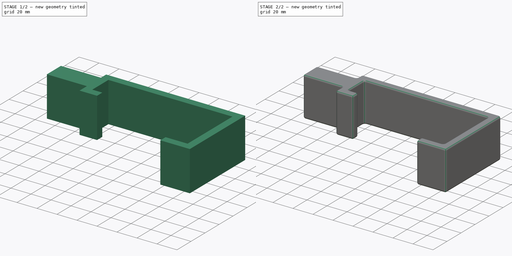
[diagram: build sequence overview — one tinted view per stage of 2, left to right]
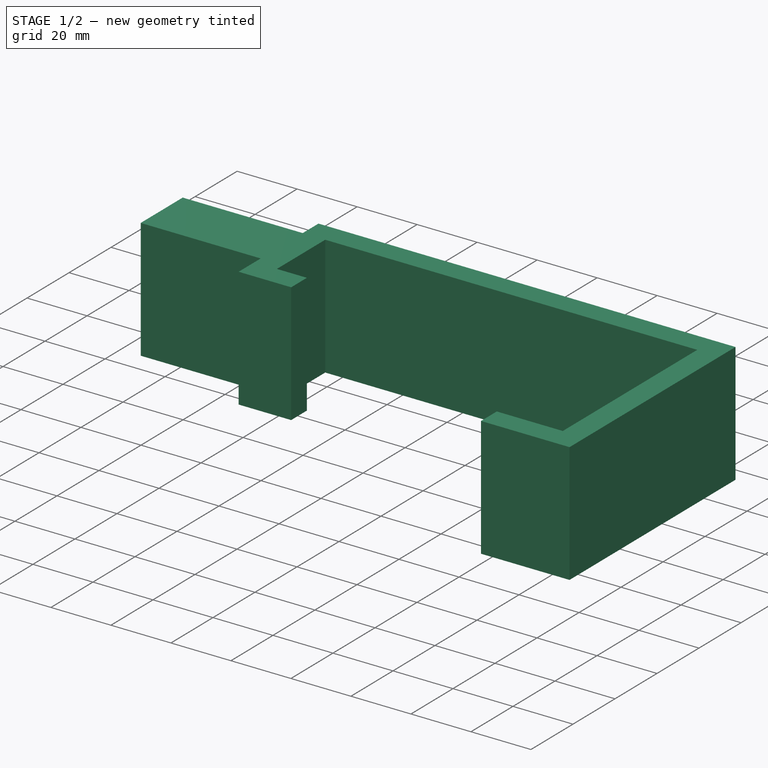
[diagram: stage 1 of 2 — iso view after this stage's code; geometry added in this stage tinted green]
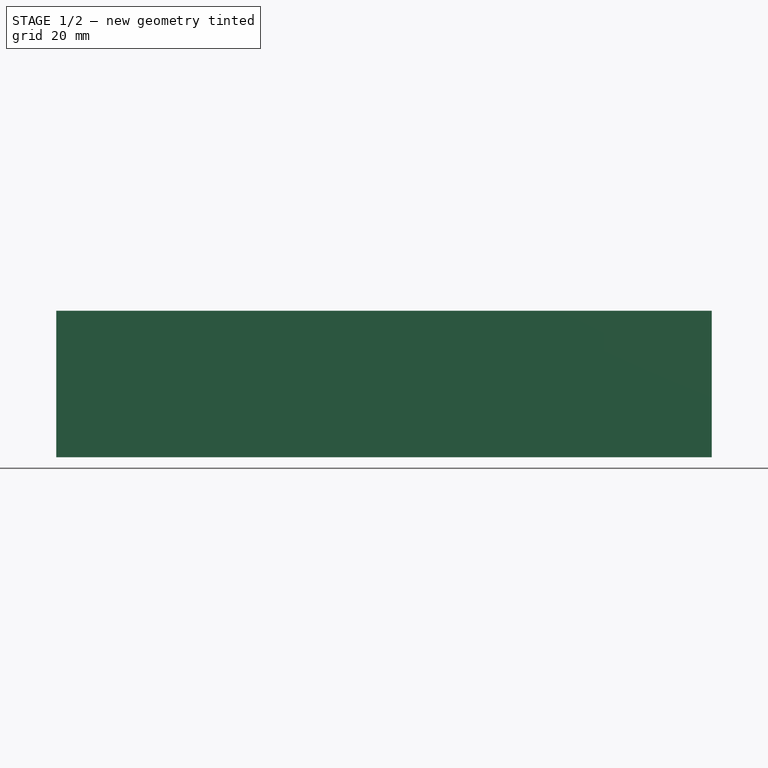
[diagram: stage 1 of 2 — front view after this stage's code; geometry added in this stage tinted green]
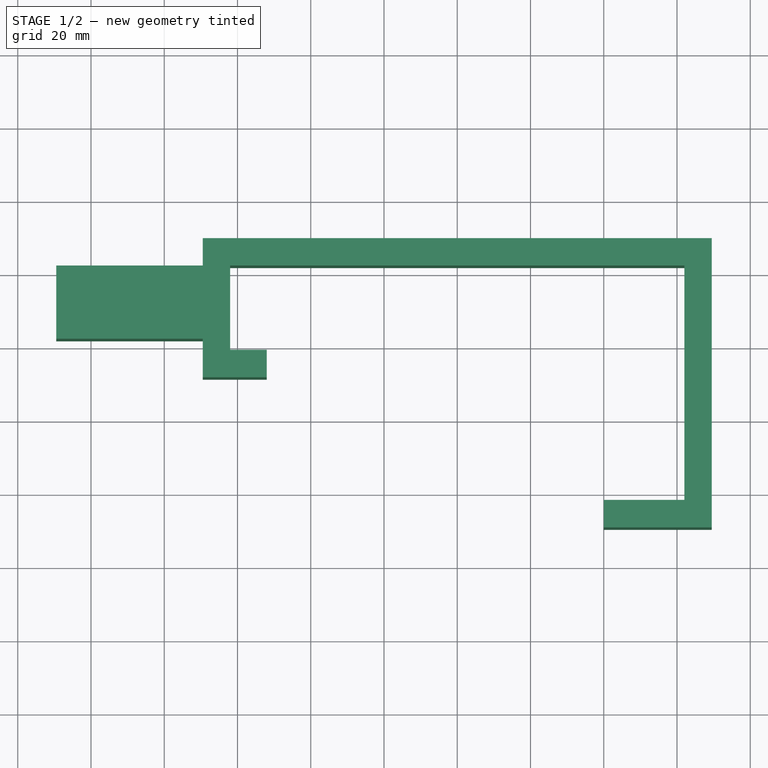
[diagram: stage 1 of 2 — top view after this stage's code; geometry added in this stage tinted green]
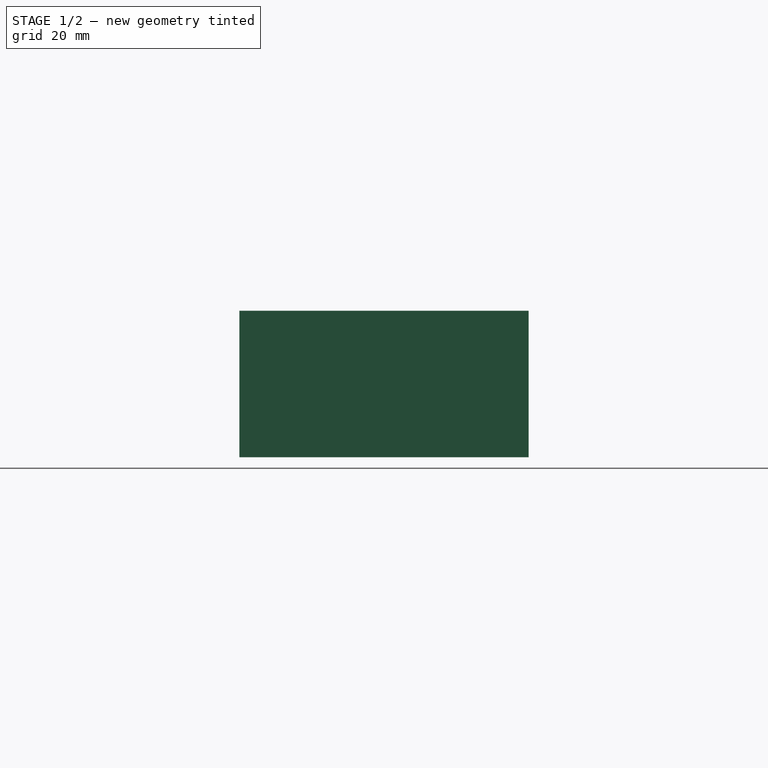
[diagram: stage 1 of 2 — right view after this stage's code; geometry added in this stage tinted green]
FCSTD DOCUMENT  (FreeCAD 1.1R20260325 (Git shallow))
Label: OurBedFanBracket
License: All rights reserved
LicenseURL: https://en.wikipedia.org/wiki/All_rights_reserved
objects: App::Point×1, Sketcher::SketchObject×1, PartDesign::Pad×1, PartDesign::Fillet×1, PartDesign::Body×1
note: 9 computed .brp shape members not serialized (recipe doc carries the construction recipe); baked Part::Feature solids carry a one-line shape summary decoded from their .brp

FEATURE [App::Point] Origin001
  Role = Origin
FEATURE [Sketcher::SketchObject] Sketch
  ArcFitTolerance = 1e-06
  AttachmentSupport = -> [Origin]
  ExternalTypes = [0]
  FullyConstrained = true
  MakeInternals = false
  MapMode = 5
  _ExternalGeoVersion = 1
  sketch-geometry (22):
    g0: LineSegment [constr] StartX=0 StartY=0 StartZ=0 EndX=20 EndY=0 EndZ=0
    g1: LineSegment [constr] StartX=20 StartY=0 StartZ=0 EndX=20 EndY=60 EndZ=0
    g2: LineSegment [constr] StartX=20 StartY=60 StartZ=0 EndX=-100 EndY=60 EndZ=0
    g3: LineSegment [constr] StartX=-100 StartY=60 StartZ=0 EndX=-100 EndY=41 EndZ=0
    g4: LineSegment [constr] StartX=-100 StartY=41 StartZ=0 EndX=-88 EndY=41 EndZ=0
    g5: LineSegment [constr] StartX=-88 StartY=41 StartZ=0 EndX=3e-16 EndY=1.3e-15 EndZ=0
    g6: LineSegment StartX=0 StartY=-2 StartZ=0 EndX=0 EndY=-9.5 EndZ=0
    g7: LineSegment StartX=0 StartY=-9.5 StartZ=0 EndX=29.5 EndY=-9.5 EndZ=0
    g8: LineSegment StartX=29.5 StartY=-9.5 StartZ=0 EndX=29.5 EndY=69.5 EndZ=0
    g9: LineSegment StartX=29.5 StartY=69.5 StartZ=0 EndX=-109.5 EndY=69.5 EndZ=0
    g10: LineSegment StartX=-109.5 StartY=69.5 StartZ=0 EndX=-109.5 EndY=62 EndZ=0
    g11: LineSegment StartX=-109.5 StartY=62 StartZ=0 EndX=-149.5 EndY=62 EndZ=0
    g12: LineSegment StartX=-149.5 StartY=62 StartZ=0 EndX=-149.5 EndY=42 EndZ=0
    g13: LineSegment StartX=-149.5 StartY=42 StartZ=0 EndX=-109.5 EndY=42 EndZ=0
    g14: LineSegment StartX=-109.5 StartY=42 StartZ=0 EndX=-109.5 EndY=31.5 EndZ=0
    g15: LineSegment StartX=-109.5 StartY=31.5 StartZ=0 EndX=-92 EndY=31.5 EndZ=0
    g16: LineSegment StartX=-92 StartY=31.5 StartZ=0 EndX=-92 EndY=39 EndZ=0
    g17: LineSegment StartX=-92 StartY=39 StartZ=0 EndX=-102 EndY=39 EndZ=0
    g18: LineSegment StartX=-102 StartY=39 StartZ=0 EndX=-102 EndY=62 EndZ=0
    g19: LineSegment StartX=-102 StartY=62 StartZ=0 EndX=22 EndY=62 EndZ=0
    g20: LineSegment StartX=22 StartY=62 StartZ=0 EndX=22 EndY=-2 EndZ=0
    g21: LineSegment StartX=22 StartY=-2 StartZ=0 EndX=0 EndY=-2 EndZ=0
  constraints (65):
    c: Coincident(g-1,g0)
    c: PointOnObject(g0,g-1)
    c: Coincident(g0,g1)
    c: Vertical(g1)
    c: Coincident(g1,g2)
    c: Horizontal(g2)
    c: Coincident(g2,g3)
    c: Vertical(g3)
    c: Coincident(g3,g4)
    c: Horizontal(g4)
    c: Coincident(g4,g5)
    c: Coincident(g5,g0)
    c: DistanceY(g1,g1) = 60
    c: DistanceX(g2,g2) = 120
    c: DistanceX(g0,g0) = 20
    c: DistanceY(g3,g3) = 19
    c: DistanceX(g4,g4) = 12
    c: PointOnObject(g6,g-2)
    c: PointOnObject(g6,g-2)
    c: Coincident(g6,g7)
    c: Horizontal(g7)
    c: Coincident(g7,g8)
    c: Vertical(g8)
    c: Coincident(g8,g9)
    c: Horizontal(g9)
    c: Coincident(g9,g10)
    c: Vertical(g10)
    c: Coincident(g10,g11)
    c: Coincident(g11,g12)
    c: Vertical(g12)
    c: Coincident(g12,g13)
    c: Horizontal(g13)
    c: Coincident(g13,g14)
    c: Vertical(g14)
    c: Coincident(g14,g15)
    c: Horizontal(g15)
    c: Coincident(g15,g16)
    c: Vertical(g16)
    c: Coincident(g16,g17)
    c: Horizontal(g17)
    c: Coincident(g17,g18)
    c: Vertical(g18)
    c: Coincident(g18,g19)
    c: Horizontal(g19)
    c: Coincident(g19,g20)
    c: Vertical(g20)
    c: Coincident(g20,g21)
    c: Coincident(g21,g6)
    c: Horizontal(g21)
    c: Horizontal(g11)
    c: Distance(g21,g0) = 2
    c: Distance(g20,g1) = 2
    c: Distance(g2,g19) = 2
    c: Distance(g3,g18) = 2
    c: Distance(g4,g17) = 2
    c: Distance(g6,g6) = 7.5
    c: Distance(g8,g20) = 7.5
    c: Distance(g19,g9) = 7.5
    c: DistanceX(g13,g10) = 0
    c: Distance(g18,g10) = 7.5
    c: Distance(g15,g17) = 7.5
    c: Distance(g16,g18) = 10
    c: Distance(g12,g12) = 20
    c: Distance(g11,g11) = 40
    c: DistanceY(g10,g18) = 0
FEATURE [PartDesign::Pad] Pad
  Direction = (0,0,1)
  Length = 40
  Length2 = 10
  Profile = -> Sketch
  ReferenceAxis = -> Sketch [N_Axis]
  Refine = true
  SideType = 0
  Suppressed = false
  Type = 0
  Type2 = 0
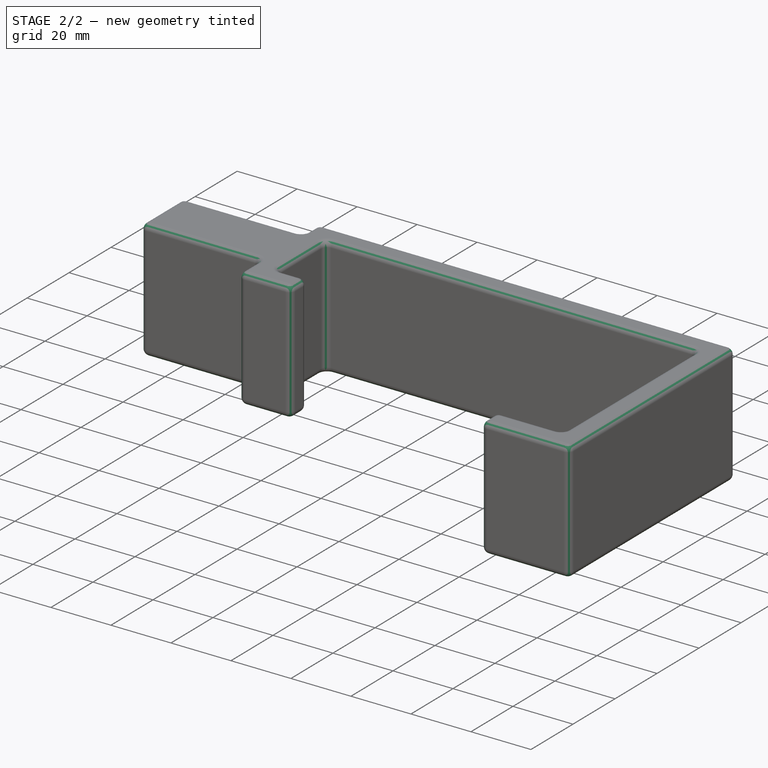
[diagram: stage 2 of 2 — iso view after this stage's code; geometry added in this stage tinted green]
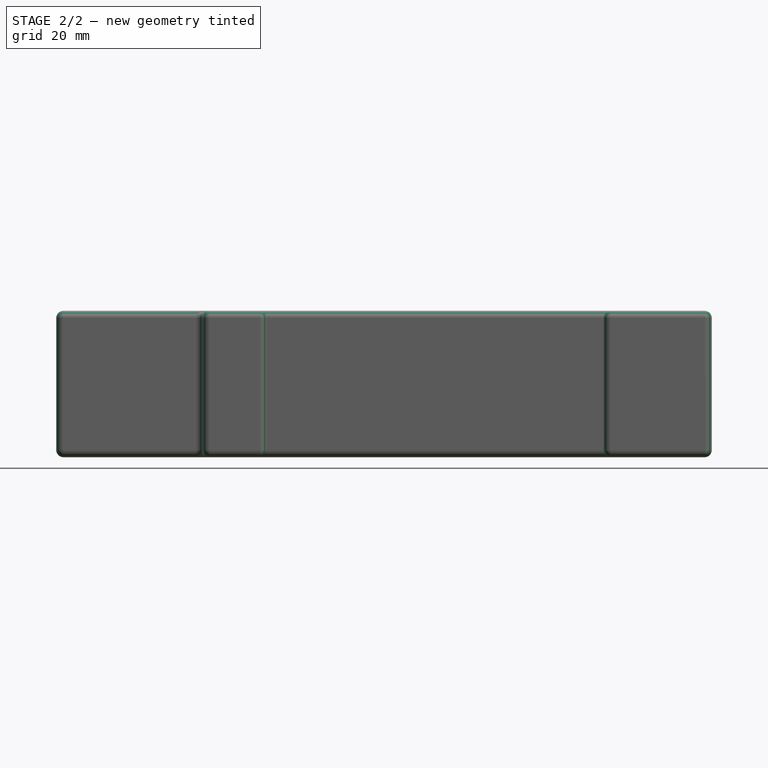
[diagram: stage 2 of 2 — front view after this stage's code; geometry added in this stage tinted green]
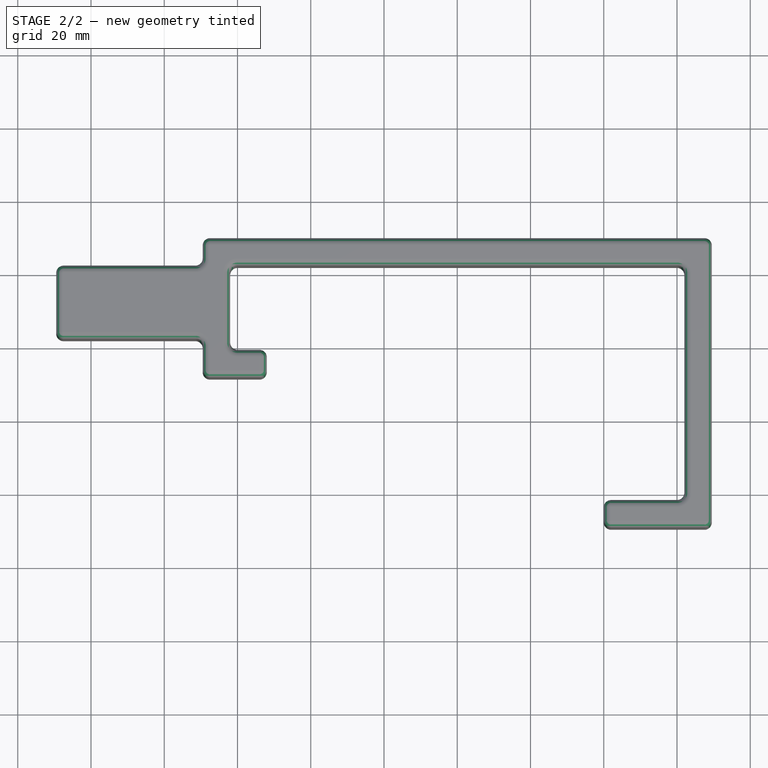
[diagram: stage 2 of 2 — top view after this stage's code; geometry added in this stage tinted green]
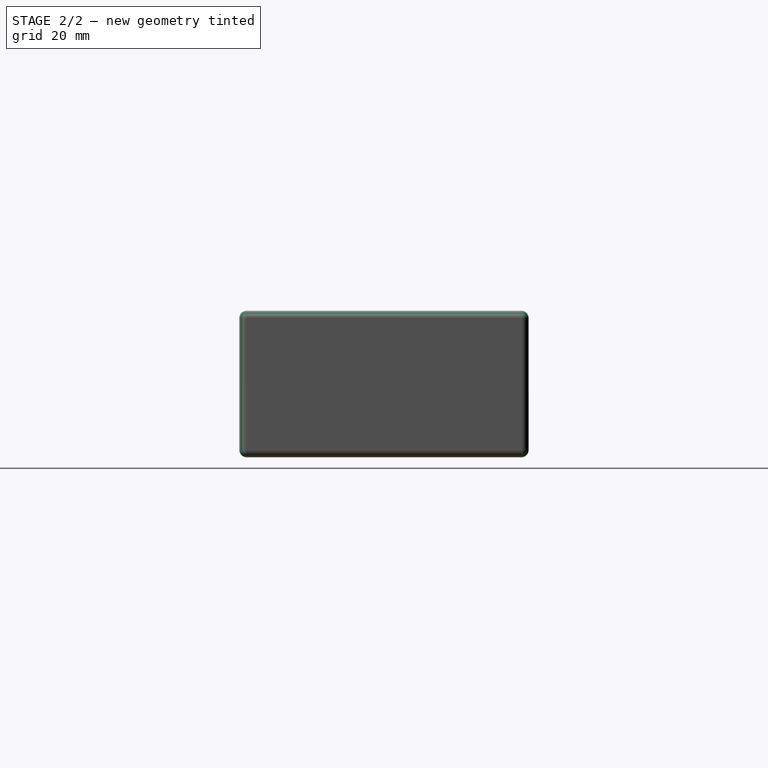
[diagram: stage 2 of 2 — right view after this stage's code; geometry added in this stage tinted green]
FEATURE [PartDesign::Fillet] Fillet
  Base = -> Pad
  BaseFeature = -> Pad
  Radius = 2
  Refine = true
  SupportTransform = false
  Suppressed = false
  UseAllEdges = true
FEATURE [PartDesign::Body] Body
  AllowCompound = true
  Group = -> [Sketch,Pad,Fillet]
  Origin = -> Origin
  Tip = -> Fillet
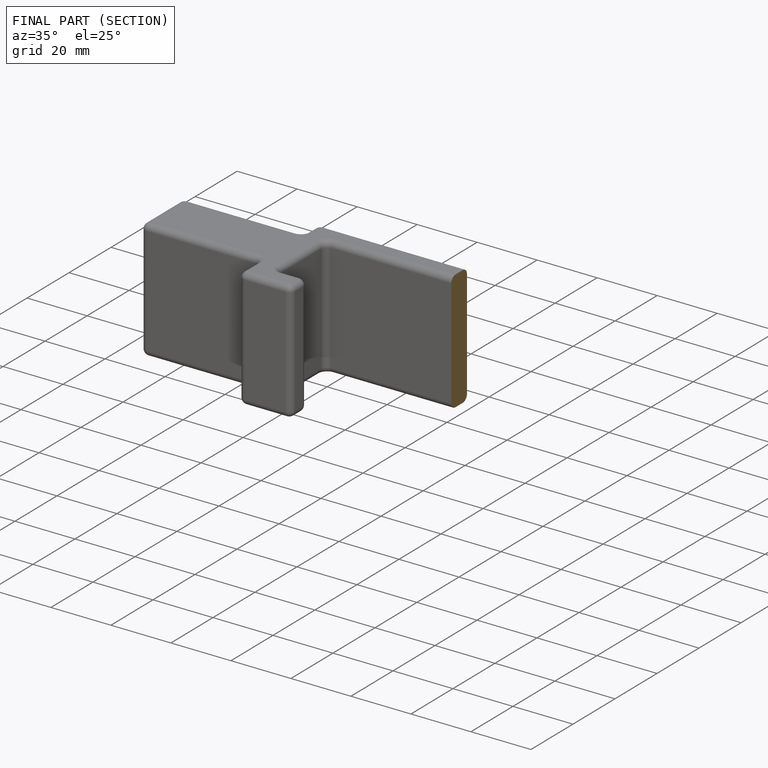
[diagram: finished part — half-section view (interior)]
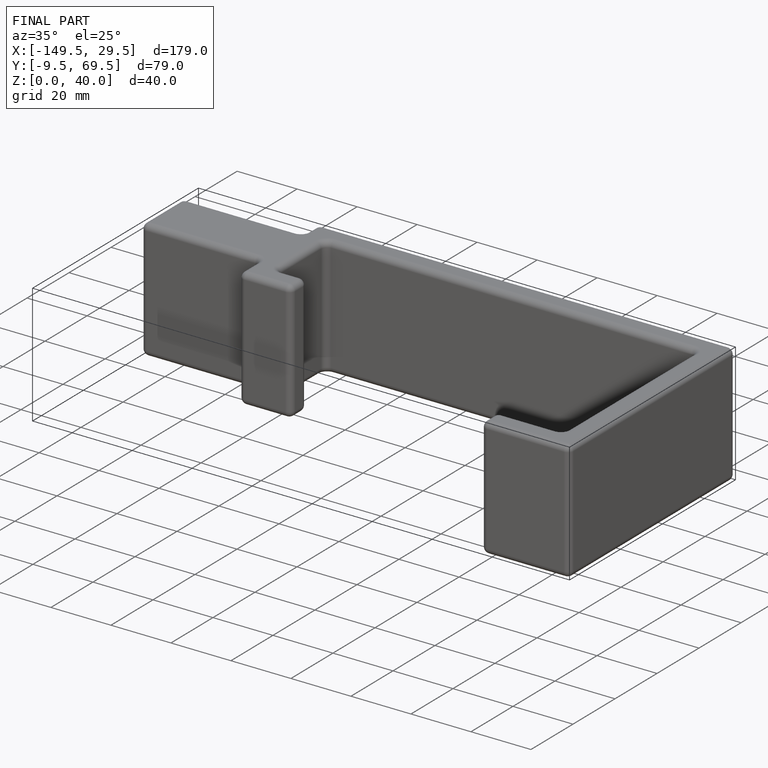
[diagram: finished part — iso view with bounding-box wireframe]
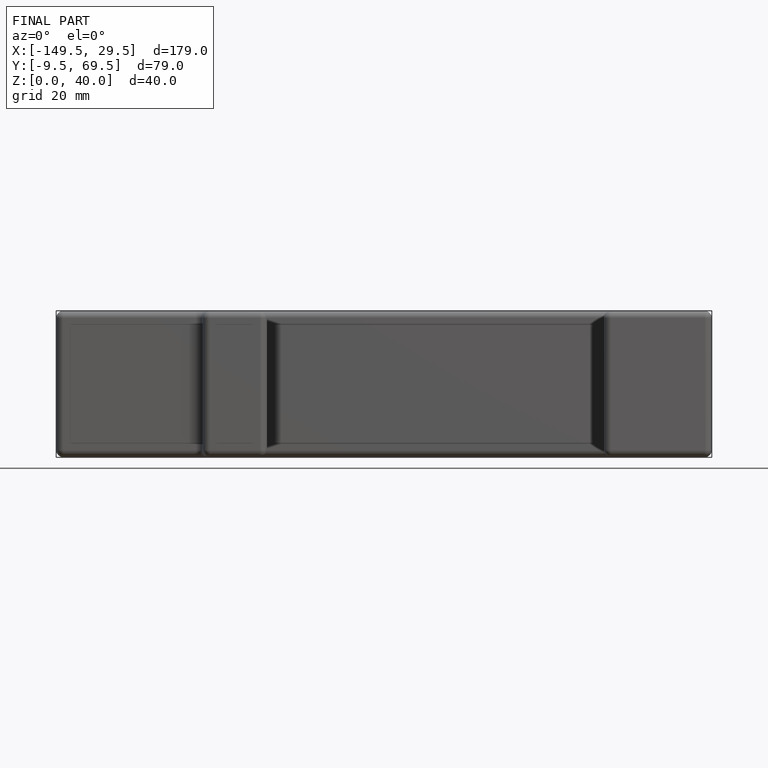
[diagram: finished part — front view with bounding-box wireframe]
